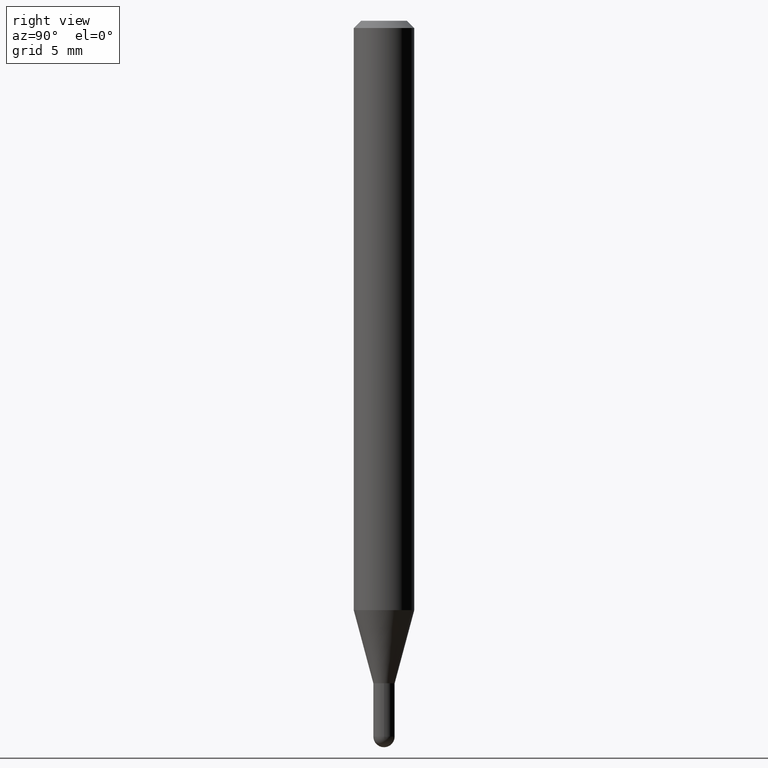
[diagram: clean part render]
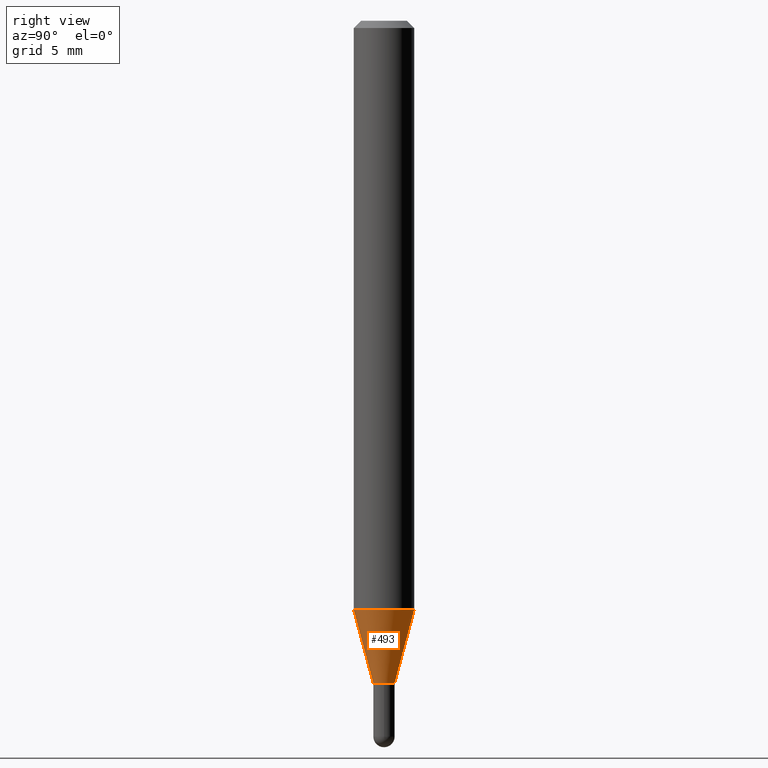
[diagram: same view with one face highlighted and labeled with its STEP entity id]
A machine part, right view. The second image highlights one B-rep face of the part: STEP entity #493.
In plain terms, the highlighted conical surface has half-angle 15 deg.
Its self-contained STEP definition (entity closure, byte-faithful):
#4 = LINE ( 'NONE', #162, #342 ) ;
#6 = EDGE_CURVE ( 'NONE', #166, #127, #51, .T. ) ;
#16 = CARTESIAN_POINT ( 'NONE',  ( 3.002043058586727691E-16, 0.02199999999999487088, -1.368000000000000105 ) ) ;
#19 = EDGE_CURVE ( 'NONE', #183, #193, #4, .T. ) ;
#24 = CIRCLE ( 'NONE', #320, 0.06250000000000000000 ) ;
#51 = LINE ( 'NONE', #292, #83 ) ;
#58 = DIRECTION ( 'NONE',  ( -2.445468129083076640E-29, 3.491482308491833698E-15, 1.000000000000000000 ) ) ;
#80 = CARTESIAN_POINT ( 'NONE',  ( 3.345400400585649103E-29, -4.776347798016828139E-15, -1.368000000000000105 ) ) ;
#83 = VECTOR ( 'NONE', #363, 39.37007874015748854 ) ;
#89 = CARTESIAN_POINT ( 'NONE',  ( 4.440892098500921985E-16, 0.06249999999999573258, -1.216851942293464273 ) ) ;
#94 = AXIS2_PLACEMENT_3D ( 'NONE', #415, #58, #490 ) ;
#127 = VERTEX_POINT ( 'NONE', #89 ) ;
#137 = DIRECTION ( 'NONE',  ( -2.445468129083076640E-29, 3.491482308491833698E-15, 1.000000000000000000 ) ) ;
#146 = AXIS2_PLACEMENT_3D ( 'NONE', #80, #137, #452 ) ;
#160 = DIRECTION ( 'NONE',  ( -1.807323732225379838E-15, -0.2588190451025252914, 0.9659258262890670910 ) ) ;
#162 = CARTESIAN_POINT ( 'NONE',  ( -1.536251789090619183E-16, -0.02200000000000442227, -1.368000000000000105 ) ) ;
#166 = VERTEX_POINT ( 'NONE', #16 ) ;
#183 = VERTEX_POINT ( 'NONE', #453 ) ;
#187 = EDGE_CURVE ( 'NONE', #183, #166, #502, .T. ) ;
#191 = EDGE_LOOP ( 'NONE', ( #394, #227, #312, #246 ) ) ;
#193 = VERTEX_POINT ( 'NONE', #302 ) ;
#227 = ORIENTED_EDGE ( 'NONE', *, *, #6, .T. ) ;
#240 = CONICAL_SURFACE ( 'NONE', #146, 0.02199999999999964831, 0.2617993877991576235 ) ;
#246 = ORIENTED_EDGE ( 'NONE', *, *, #19, .F. ) ;
#251 = EDGE_CURVE ( 'NONE', #193, #127, #24, .T. ) ;
#292 = CARTESIAN_POINT ( 'NONE',  ( 1.563194018672529700E-16, 0.02199999999999487088, -1.368000000000000105 ) ) ;
#302 = CARTESIAN_POINT ( 'NONE',  ( -4.364351673553619392E-16, -0.06250000000000427436, -1.216851942293464051 ) ) ;
#312 = ORIENTED_EDGE ( 'NONE', *, *, #251, .F. ) ;
#320 = AXIS2_PLACEMENT_3D ( 'NONE', #333, #460, #456 ) ;
#333 = CARTESIAN_POINT ( 'NONE',  ( 2.975772642691505504E-29, -4.248617028571555662E-15, -1.216851942293464051 ) ) ;
#342 = VECTOR ( 'NONE', #160, 39.37007874015748143 ) ;
#363 = DIRECTION ( 'NONE',  ( 1.839019923739650408E-15, 0.2588190451025320082, 0.9659258262890650926 ) ) ;
#394 = ORIENTED_EDGE ( 'NONE', *, *, #187, .T. ) ;
#405 = FACE_OUTER_BOUND ( 'NONE', #191, .T. ) ;
#415 = CARTESIAN_POINT ( 'NONE',  ( 3.345400400585649103E-29, -4.776347798016828139E-15, -1.368000000000000105 ) ) ;
#452 = DIRECTION ( 'NONE',  ( -6.982962677686265133E-15, -1.000000000000000000, 0.000000000000000000 ) ) ;
#453 = CARTESIAN_POINT ( 'NONE',  ( -1.536251789090619183E-16, -0.02200000000000442227, -1.368000000000000105 ) ) ;
#456 = DIRECTION ( 'NONE',  ( -6.982962677686265922E-15, -1.000000000000000000, 4.370956789862821150E-15 ) ) ;
#460 = DIRECTION ( 'NONE',  ( -2.445468129083076640E-29, 3.491482308491833698E-15, 1.000000000000000000 ) ) ;
#490 = DIRECTION ( 'NONE',  ( -6.982962677686265133E-15, -1.000000000000000000, 0.000000000000000000 ) ) ;
#493 = ADVANCED_FACE ( 'NONE', ( #405 ), #240, .T. ) ;
#502 = CIRCLE ( 'NONE', #94, 0.02199999999999964831 ) ;